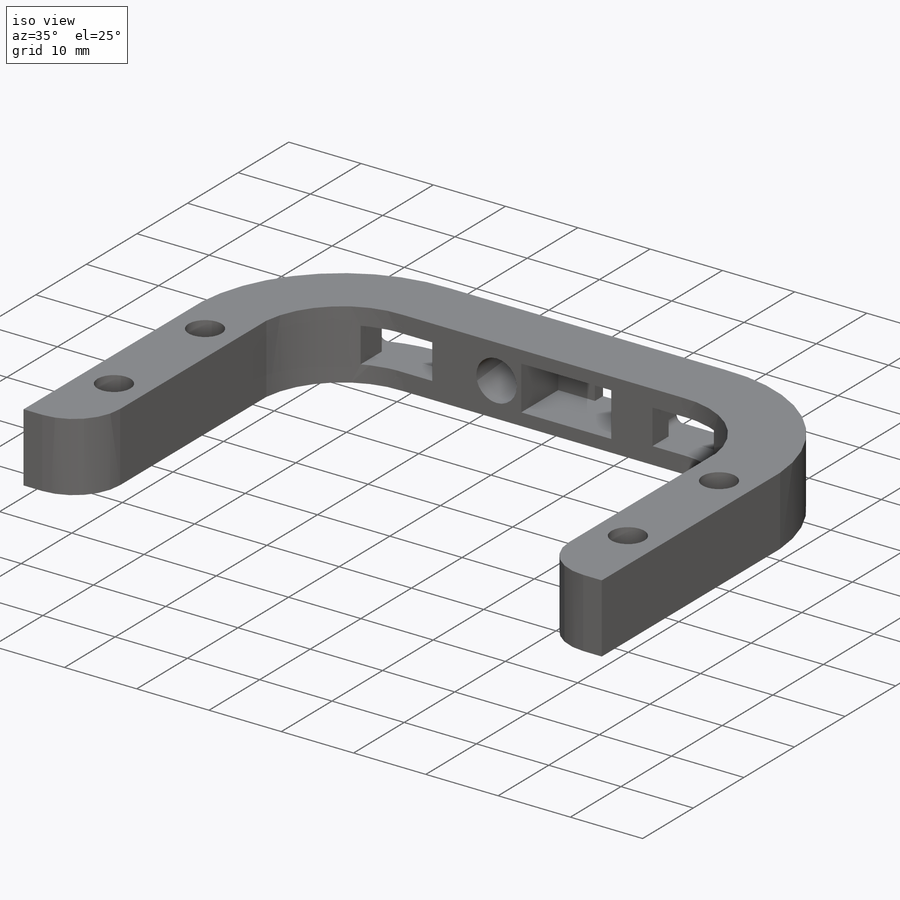
[diagram: iso view]
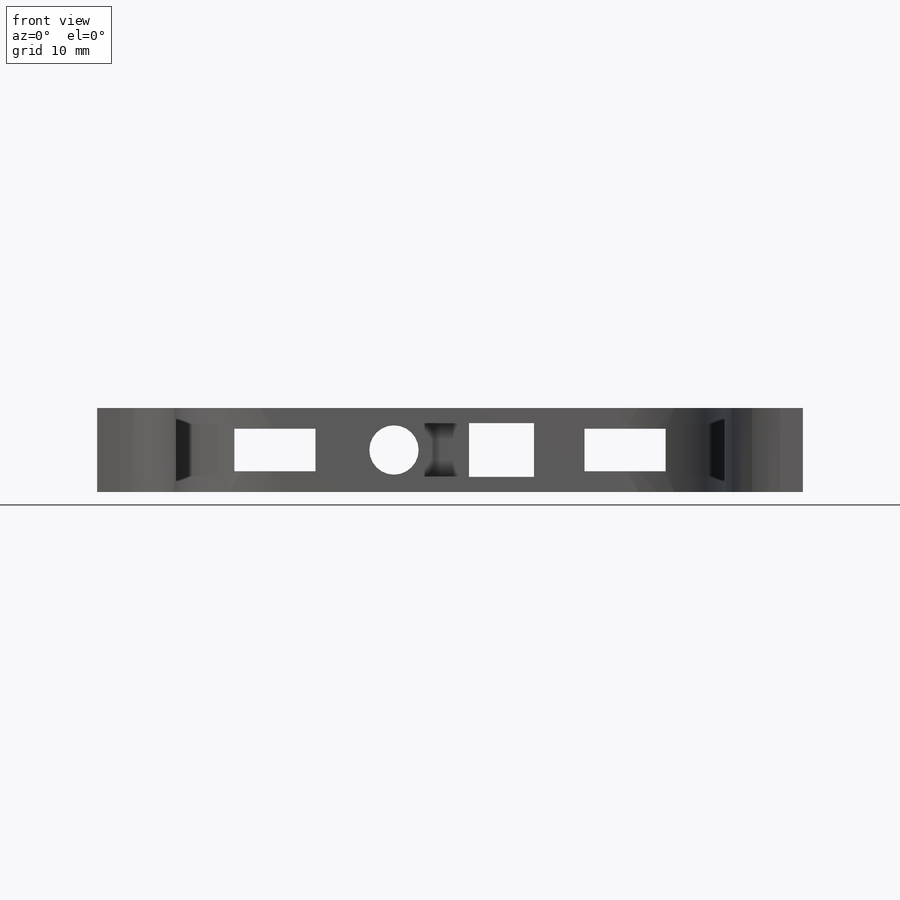
[diagram: front view]
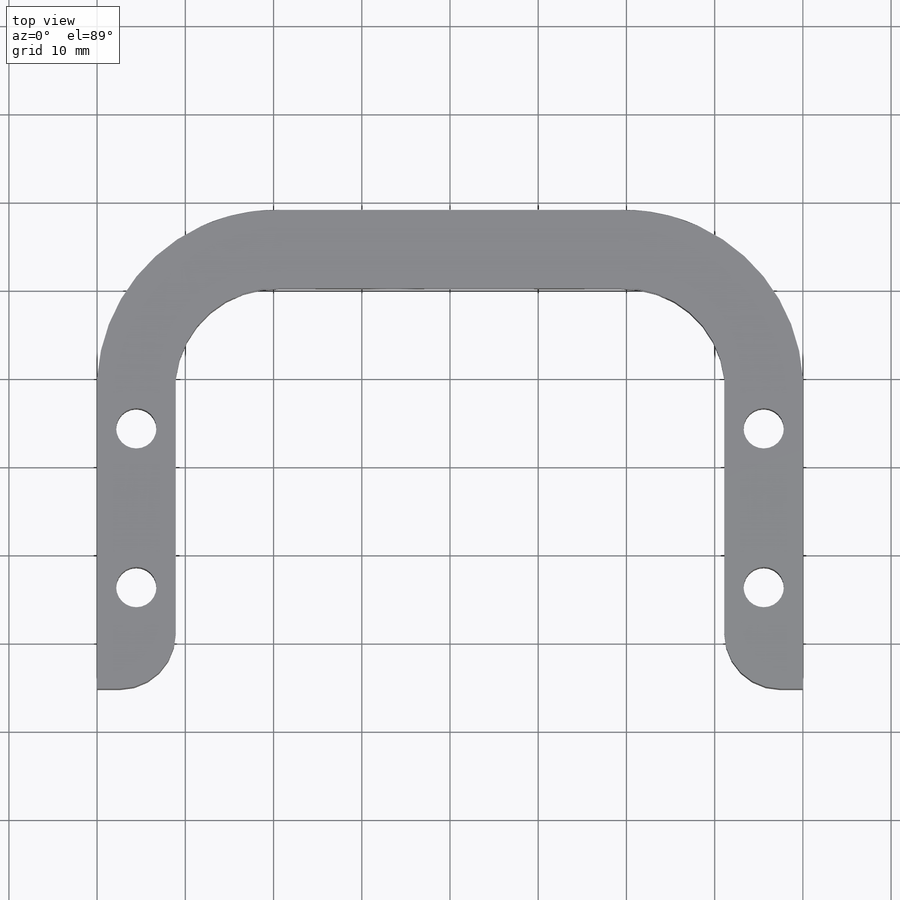
[diagram: top view]
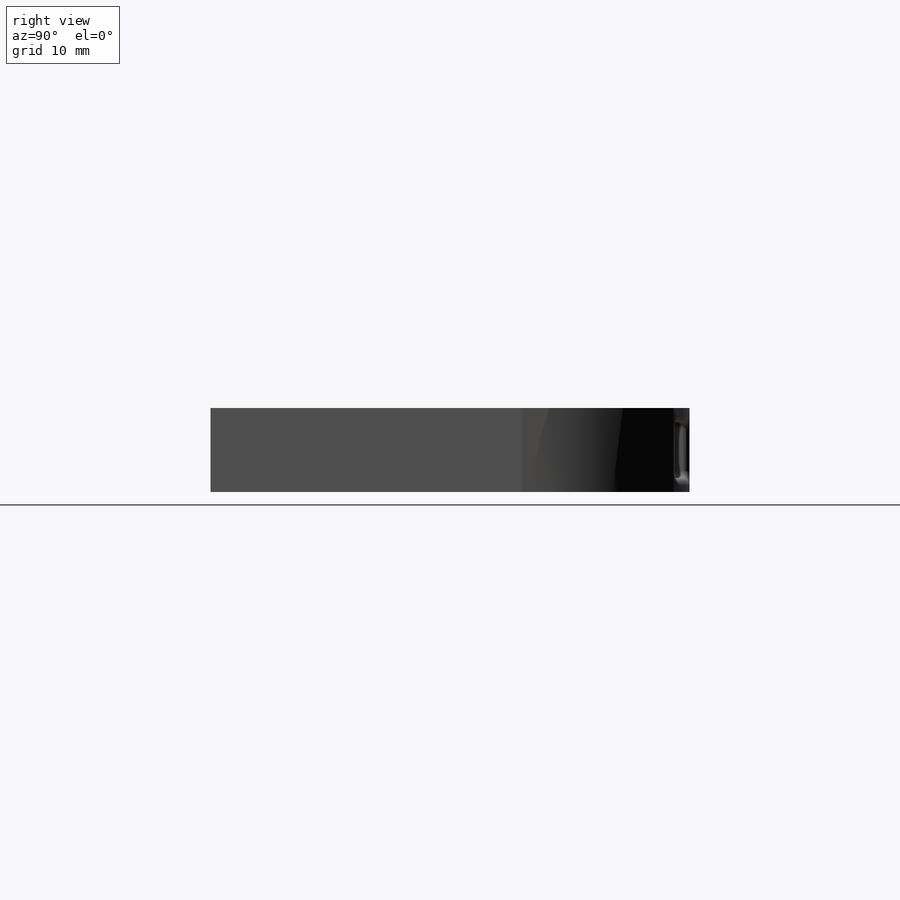
[diagram: right view]
SOLIDWORKS PART (.sldprt)
format: sldprt  version: not decoded by parser v0  size: 489,472 bytes
history: native  units: mm
features: sketch x10, cut_extrude x5, extrude x3, fillet x2, material x1, plane x1, hole x1 (+16 scaffold rows collapsed)
feature tree (39):
  scaffold x16  (default folders/planes/origin — collapsed)
  material  "Material <not specified>"
  sketch  "Sketch1"  dims[c1.D1=104.14mm c1.D4=20.32mm c1.D2=~12.872943mm c1.D3=~12.872943mm c2.D2=80.01mm c2.D1=80.01mm c3.D2=38.1mm c3.D3=19.05mm c3.D6=22.5425mm c4.D3=5.08mm c4.D5=8.89mm]
  extrude  "Extrude1"  Depth=9.525mm
  plane  "Plane1"  Offset=2.54mm
  sketch  "Sketch2"  dims[c1.D4=~2.263669mm c1.D5=3.175mm c1.D1=25.4mm c1.D2=14.2875mm c1.D3=6.35mm c2.D4=45.72mm]
  cut_extrude  "Extrude2"  [1 undecoded]
  sketch  "Sketch3"
  extrude  "Extrude3"  Depth=12.7mm
  hole  "#2-56 Tapped Hole1"  Diameter=1.778mm Depth=5.588mm
  sketch  "3DSketch1"  dims[c1.D2=31.115mm c1.D3=35.8775mm c1.D1=13.6525mm c2.D2=~2.670184mm]
  sketch  "Sketch5"  dims[hole-wizard template sketch: 34 standard entries collapsed; hole parameters above]
  sketch  "Sketch6"  dims[D1=0.762mm D2=2.54mm D3=0.762mm D4=2.54mm]
  extrude  "Boss-Extrude1"  Depth=3.175mm
  sketch  "Sketch7"  dims[c1.D1=5.588mm c1.D2=6.35mm c1.D3=6.096mm c1.D4=7.366mm c1.D5=12.7mm c1.D6=4.191mm c2.D1=5.588mm c2.D5=~4.103109mm c2.D6=~4.103109mm c2.D2=6.35mm c2.D3=6.096mm c2.D4=7.366mm c3.D5=12.7mm c3.D6=4.191mm]
  cut_extrude  "Cut-Extrude1"  [1 undecoded]
  sketch  "Sketch9"  dims[D1=5.08mm]
  cut_extrude  "Cut-Extrude2"  Depth=1.5875mm
  fillet  "Fillet1"  Radius=0.762mm
  sketch  "Sketch10"
  cut_extrude  "Cut-Extrude3"  [1 undecoded]
  sketch  "Sketch12"  dims[D1=4.572mm]
  cut_extrude  "Cut-Extrude4"  [1 undecoded]
  fillet  "Fillet2"  Radius=6.35mm
decode coverage: 15 of 21 modeling features carry decoded parameters
note: ~ marks probable driven/reference dimensions
note: 4 parameter values undecoded
summary: no parameter record found for 4 features
note: suppression state not decoded; provenance and decode notes live in map.json
